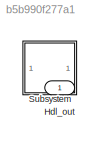
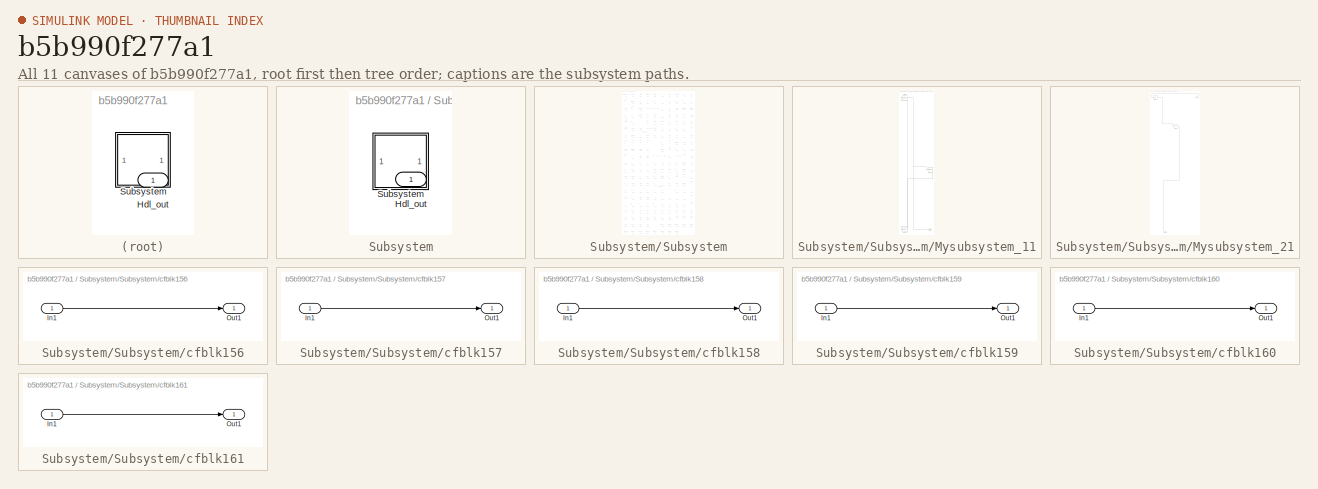
[diagram: thumbnail index - all 11 canvases of the model, root first then tree order]
MODEL slx_b5b990f277a1
KIND model
CONFIG AbsTol = auto
CONFIG EnableMultiTasking = off
CONFIG FixedStep = auto
CONFIG MaxStep = auto
CONFIG MinStep = auto
CONFIG RelTol = 1e-3
CONFIG SampleTimeConstraint = Unconstrained
CONFIG SolverName = VariableStepAuto
CONFIG StartTime = 0.0
CONFIG StopTime = 10.0
BLOCK [Outport] Hdl_out
  OutDataTypeStr = uint8
BLOCK [SubSystem] Subsystem
BLOCK [Outport] Subsystem/Hdl_out
  OutDataTypeStr = uint8
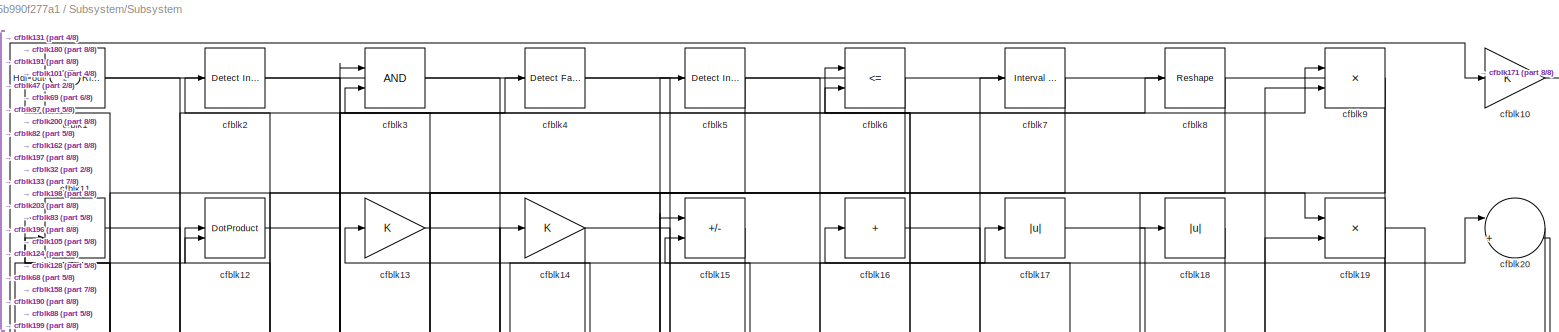
[diagram: Subsystem/Subsystem - part 1/8, full width, top band]
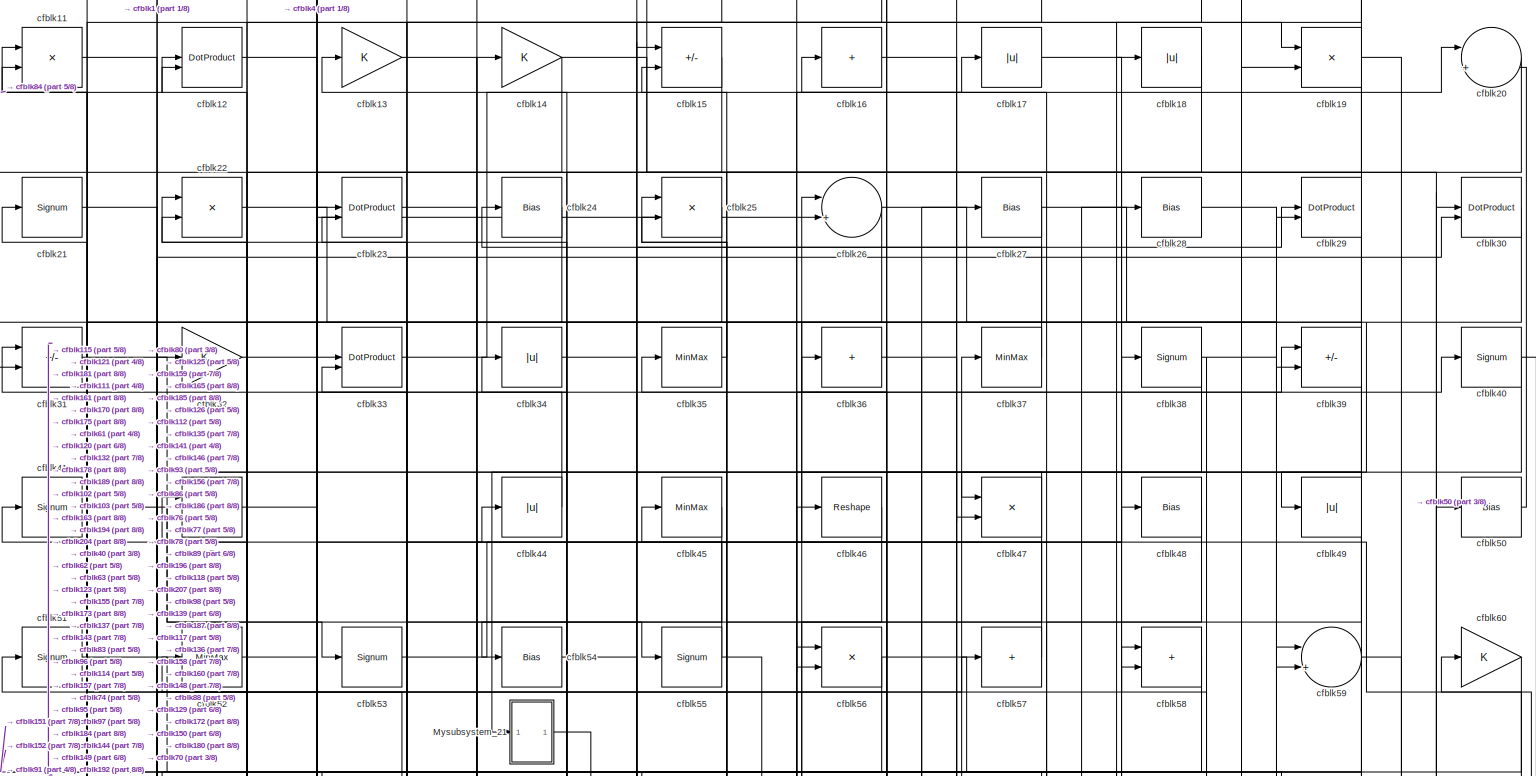
[diagram: Subsystem/Subsystem - part 2/8, full width, top band]
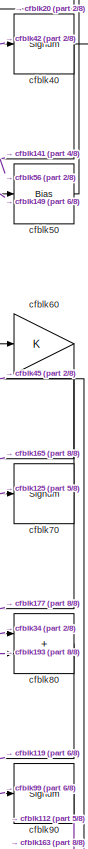
[diagram: Subsystem/Subsystem - part 3/8, top right region]
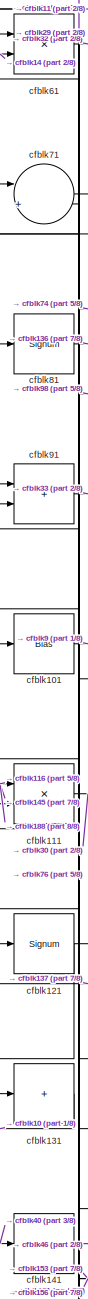
[diagram: Subsystem/Subsystem - part 4/8, middle left region]
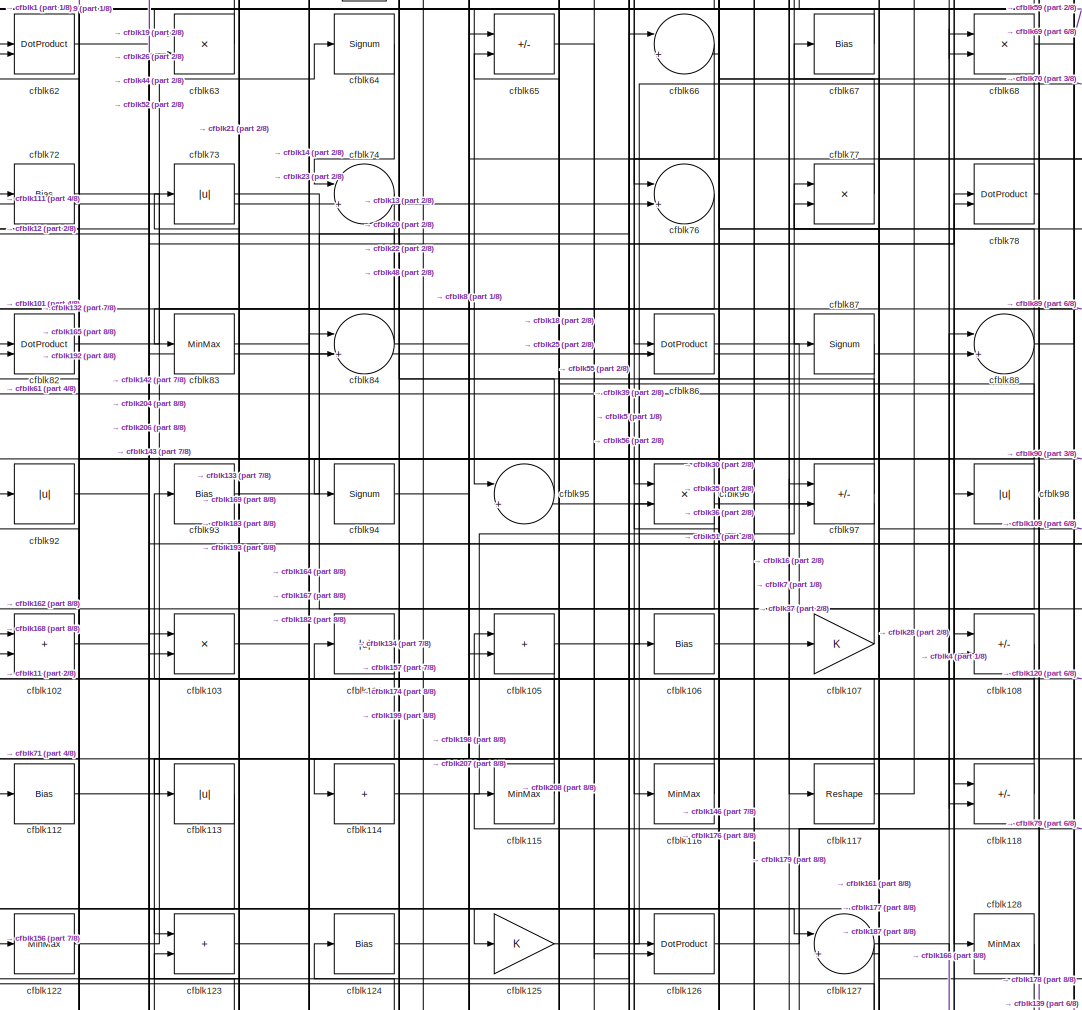
[diagram: Subsystem/Subsystem - part 5/8, central region]
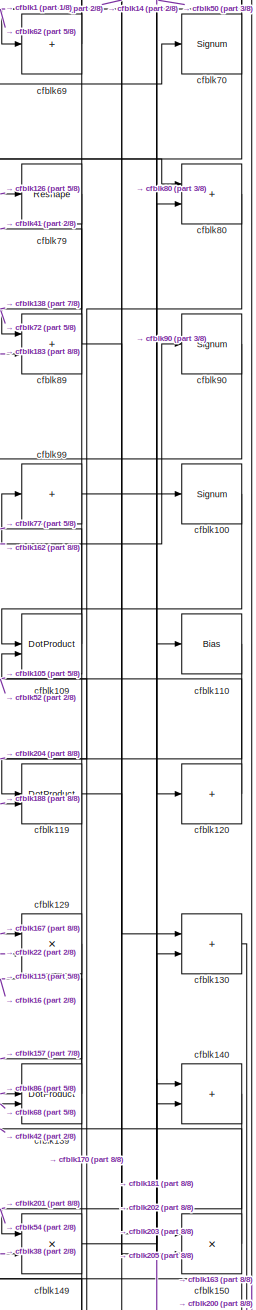
[diagram: Subsystem/Subsystem - part 6/8, middle right region]
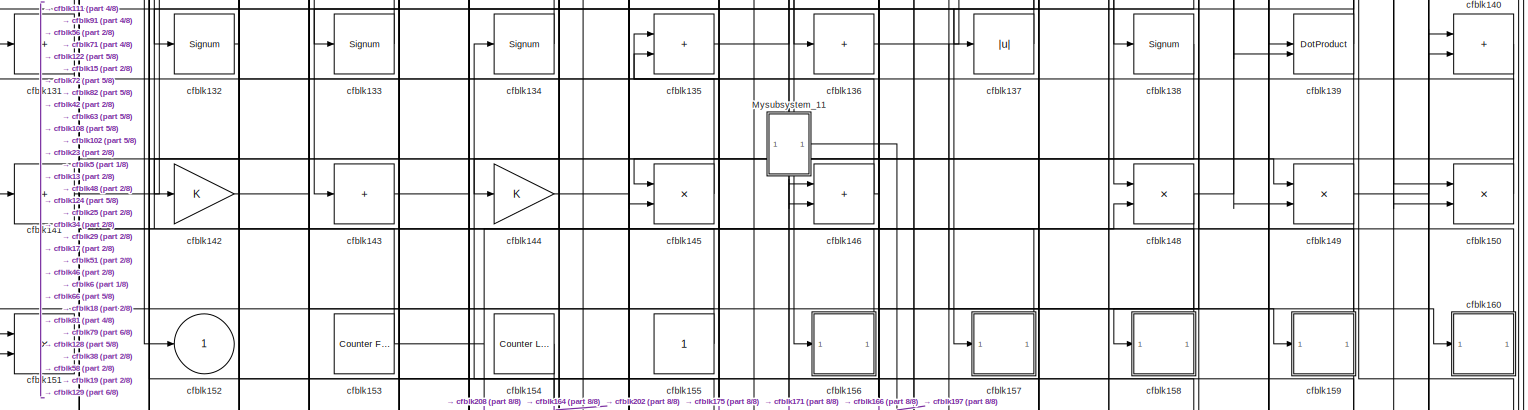
[diagram: Subsystem/Subsystem - part 7/8, full width, bottom band]
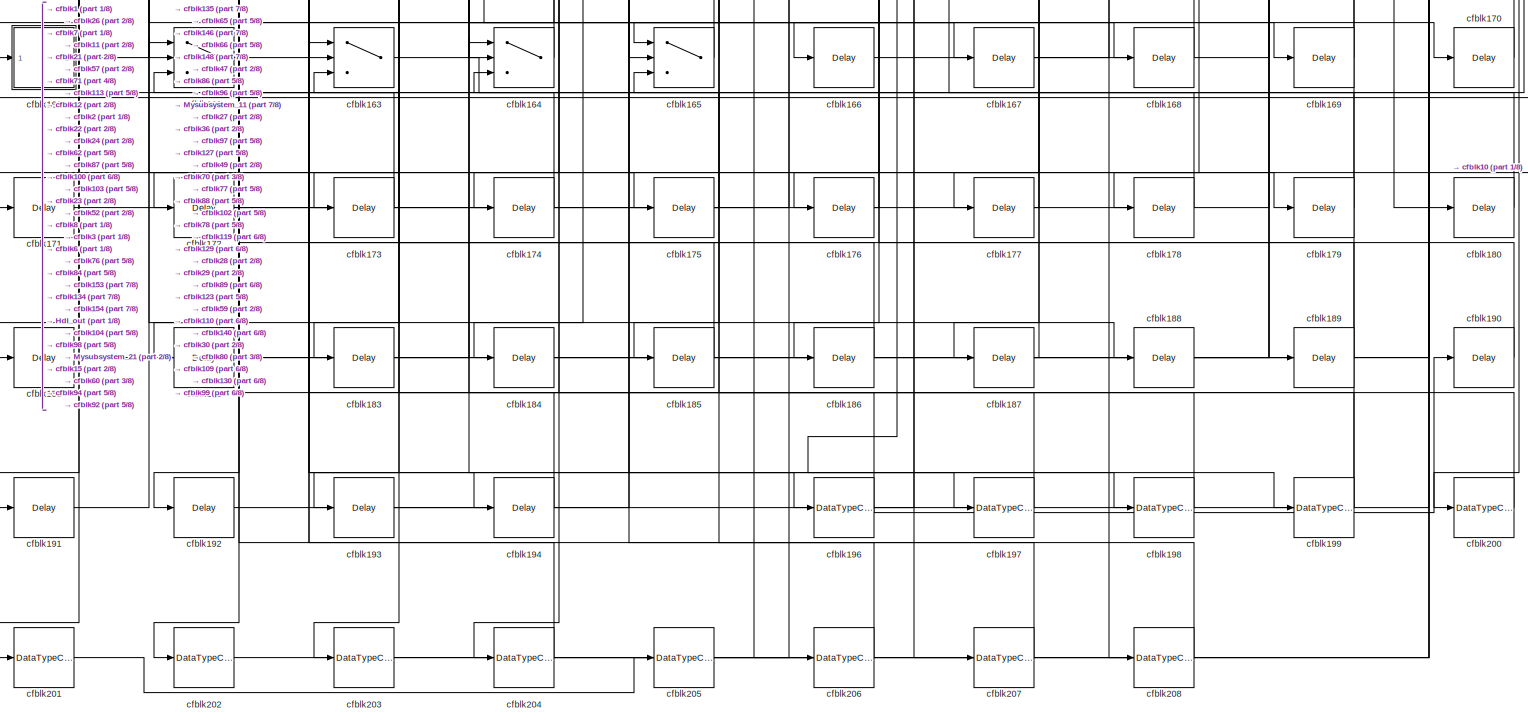
[diagram: Subsystem/Subsystem - part 8/8, full width, bottom band]
BLOCK [SubSystem] Subsystem/Subsystem
BLOCK [Outport] Subsystem/Subsystem/Hdl_out
  OutDataTypeStr = uint8
  Port = 2
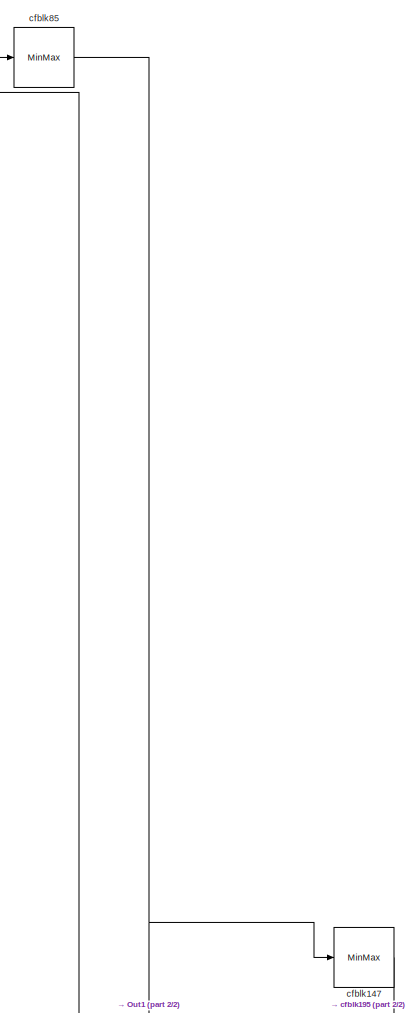
[diagram: Subsystem/Subsystem/Mysubsystem_11 - part 1/2, full width, top band]
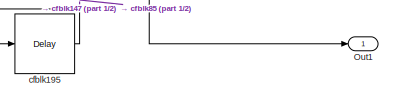
[diagram: Subsystem/Subsystem/Mysubsystem_11 - part 2/2, full width, bottom band]
BLOCK [SubSystem] Subsystem/Subsystem/Mysubsystem_11
  RTWFcnName = Mysubsystem_11
  RTWFcnNameOpts = User specified
  RTWFileNameOpts = Use function name
  RTWSystemCode = Reusable function
  TreatAsAtomicUnit = on
BLOCK [Outport] Subsystem/Subsystem/Mysubsystem_11/Out1
BLOCK [MinMax] Subsystem/Subsystem/Mysubsystem_11/cfblk147
BLOCK [Delay] Subsystem/Subsystem/Mysubsystem_11/cfblk195
  InputPortMap = u0
  SampleTime = 1
BLOCK [MinMax] Subsystem/Subsystem/Mysubsystem_11/cfblk85
BLOCK [SubSystem] Subsystem/Subsystem/Mysubsystem_21
  RTWFcnName = Mysubsystem_21
  RTWFcnNameOpts = User specified
  RTWFileNameOpts = Use function name
  RTWSystemCode = Reusable function
  TreatAsAtomicUnit = on
BLOCK [Inport] Subsystem/Subsystem/Mysubsystem_21/In1
BLOCK [Outport] Subsystem/Subsystem/Mysubsystem_21/Out1
BLOCK [Bias] Subsystem/Subsystem/Mysubsystem_21/cfblk43
  Bias = 0.0
  SaturateOnIntegerOverflow = off
BLOCK [Sum] Subsystem/Subsystem/Mysubsystem_21/cfblk75
  IconShape = rectangular
  Inputs = +
BLOCK [Reference] Subsystem/Subsystem/cfblk1  REF=hdlsllib/Logic and Bit
Operations/Detect Rise
Positive
  SourceBlock = hdlsllib/Logic and Bit\nOperations/Detect Rise\nPositive
  SourceType = Detect Rise Positive
BLOCK [Gain] Subsystem/Subsystem/cfblk10
  OutDataTypeStr = uint8
BLOCK [Signum] Subsystem/Subsystem/cfblk100
BLOCK [Bias] Subsystem/Subsystem/cfblk101
  Bias = 0.0
  SaturateOnIntegerOverflow = off
BLOCK [Sum] Subsystem/Subsystem/cfblk102
  IconShape = rectangular
  OutDataTypeStr = uint8
BLOCK [Product] Subsystem/Subsystem/cfblk103
  Inputs = */
  OutDataTypeStr = uint8
  RndMeth = Zero
  SaturateOnIntegerOverflow = on
BLOCK [Abs] Subsystem/Subsystem/cfblk104
  OutDataTypeStr = uint8
  SaturateOnIntegerOverflow = off
BLOCK [Sum] Subsystem/Subsystem/cfblk105
  IconShape = rectangular
  OutDataTypeStr = uint8
BLOCK [Bias] Subsystem/Subsystem/cfblk106
  Bias = 0.0
  SaturateOnIntegerOverflow = off
BLOCK [Gain] Subsystem/Subsystem/cfblk107
  OutDataTypeStr = uint8
BLOCK [Sum] Subsystem/Subsystem/cfblk108
  IconShape = rectangular
  Inputs = +-
  OutDataTypeStr = uint8
BLOCK [DotProduct] Subsystem/Subsystem/cfblk109
  OutDataTypeStr = uint8
BLOCK [Product] Subsystem/Subsystem/cfblk11
  Inputs = */
  OutDataTypeStr = uint8
  RndMeth = Zero
  SaturateOnIntegerOverflow = on
BLOCK [Bias] Subsystem/Subsystem/cfblk110
  Bias = 0.0
  SaturateOnIntegerOverflow = off
BLOCK [Product] Subsystem/Subsystem/cfblk111
  Inputs = */
  OutDataTypeStr = uint8
  RndMeth = Zero
  SaturateOnIntegerOverflow = on
BLOCK [Bias] Subsystem/Subsystem/cfblk112
  Bias = 0.0
  SaturateOnIntegerOverflow = off
BLOCK [Abs] Subsystem/Subsystem/cfblk113
  OutDataTypeStr = uint8
  SaturateOnIntegerOverflow = off
BLOCK [Sum] Subsystem/Subsystem/cfblk114
  IconShape = rectangular
  Inputs = +
  OutDataTypeStr = uint8
BLOCK [MinMax] Subsystem/Subsystem/cfblk115
  OutDataTypeStr = uint8
BLOCK [MinMax] Subsystem/Subsystem/cfblk116
  OutDataTypeStr = uint8
BLOCK [Reshape] Subsystem/Subsystem/cfblk117
BLOCK [Sum] Subsystem/Subsystem/cfblk118
  IconShape = rectangular
  Inputs = +-
  OutDataTypeStr = uint8
BLOCK [DotProduct] Subsystem/Subsystem/cfblk119
  OutDataTypeStr = uint8
BLOCK [DotProduct] Subsystem/Subsystem/cfblk12
  OutDataTypeStr = uint8
BLOCK [Sum] Subsystem/Subsystem/cfblk120
  IconShape = rectangular
  Inputs = +
  OutDataTypeStr = uint8
BLOCK [Signum] Subsystem/Subsystem/cfblk121
BLOCK [MinMax] Subsystem/Subsystem/cfblk122
  OutDataTypeStr = uint8
BLOCK [Sum] Subsystem/Subsystem/cfblk123
  IconShape = rectangular
  OutDataTypeStr = uint8
BLOCK [Bias] Subsystem/Subsystem/cfblk124
  Bias = 0.0
  SaturateOnIntegerOverflow = off
BLOCK [Gain] Subsystem/Subsystem/cfblk125
  OutDataTypeStr = uint8
BLOCK [DotProduct] Subsystem/Subsystem/cfblk126
  OutDataTypeStr = uint8
BLOCK [Sum] Subsystem/Subsystem/cfblk127
  Inputs = |++
  OutDataTypeStr = uint8
BLOCK [MinMax] Subsystem/Subsystem/cfblk128
  OutDataTypeStr = uint8
BLOCK [Product] Subsystem/Subsystem/cfblk129
  Inputs = */
  OutDataTypeStr = uint8
  RndMeth = Zero
  SaturateOnIntegerOverflow = on
BLOCK [Gain] Subsystem/Subsystem/cfblk13
  OutDataTypeStr = uint8
BLOCK [Sum] Subsystem/Subsystem/cfblk130
  IconShape = rectangular
  OutDataTypeStr = uint8
BLOCK [Sum] Subsystem/Subsystem/cfblk131
  IconShape = rectangular
  Inputs = +
  OutDataTypeStr = uint8
BLOCK [Signum] Subsystem/Subsystem/cfblk132
BLOCK [Signum] Subsystem/Subsystem/cfblk133
BLOCK [Signum] Subsystem/Subsystem/cfblk134
BLOCK [Sum] Subsystem/Subsystem/cfblk135
  IconShape = rectangular
  OutDataTypeStr = uint8
BLOCK [Sum] Subsystem/Subsystem/cfblk136
  IconShape = rectangular
  Inputs = +
  OutDataTypeStr = uint8
BLOCK [Abs] Subsystem/Subsystem/cfblk137
  OutDataTypeStr = uint8
  SaturateOnIntegerOverflow = off
BLOCK [Signum] Subsystem/Subsystem/cfblk138
BLOCK [DotProduct] Subsystem/Subsystem/cfblk139
  OutDataTypeStr = uint8
BLOCK [Gain] Subsystem/Subsystem/cfblk14
  OutDataTypeStr = uint8
BLOCK [Sum] Subsystem/Subsystem/cfblk140
  IconShape = rectangular
  OutDataTypeStr = uint8
BLOCK [Sum] Subsystem/Subsystem/cfblk141
  IconShape = rectangular
  Inputs = +
  OutDataTypeStr = uint8
BLOCK [Gain] Subsystem/Subsystem/cfblk142
  OutDataTypeStr = uint8
BLOCK [Sum] Subsystem/Subsystem/cfblk143
  IconShape = rectangular
  Inputs = +
  OutDataTypeStr = uint8
BLOCK [Gain] Subsystem/Subsystem/cfblk144
  OutDataTypeStr = uint8
BLOCK [Product] Subsystem/Subsystem/cfblk145
  Inputs = */
  OutDataTypeStr = uint8
  RndMeth = Zero
  SaturateOnIntegerOverflow = on
BLOCK [Sum] Subsystem/Subsystem/cfblk146
  IconShape = rectangular
  OutDataTypeStr = uint8
BLOCK [Product] Subsystem/Subsystem/cfblk148
  Inputs = */
  OutDataTypeStr = uint8
  RndMeth = Zero
  SaturateOnIntegerOverflow = on
BLOCK [Product] Subsystem/Subsystem/cfblk149
  Inputs = */
  OutDataTypeStr = uint8
  RndMeth = Zero
  SaturateOnIntegerOverflow = on
BLOCK [Sum] Subsystem/Subsystem/cfblk15
  IconShape = rectangular
  Inputs = +-
  OutDataTypeStr = uint8
BLOCK [Product] Subsystem/Subsystem/cfblk150
  Inputs = */
  OutDataTypeStr = uint8
  RndMeth = Zero
  SaturateOnIntegerOverflow = on
BLOCK [Product] Subsystem/Subsystem/cfblk151
  Inputs = */
  OutDataTypeStr = uint8
  RndMeth = Zero
  SaturateOnIntegerOverflow = on
BLOCK [Outport] Subsystem/Subsystem/cfblk152
  OutDataTypeStr = uint8
  VectorParamsAs1DForOutWhenUnconnected = off
BLOCK [Reference] Subsystem/Subsystem/cfblk153  REF=hdlsllib/Sources/Counter
Free-Running
  SourceBlock = hdlsllib/Sources/Counter\nFree-Running
  SourceType = Counter Free-Running
BLOCK [Reference] Subsystem/Subsystem/cfblk154  REF=hdlsllib/Sources/Counter
Limited
  SourceBlock = hdlsllib/Sources/Counter\nLimited
  SourceType = Counter Limited
BLOCK [Constant] Subsystem/Subsystem/cfblk155
  OutDataTypeStr = uint8
  SampleTime = -1
BLOCK [SubSystem] Subsystem/Subsystem/cfblk156
  LibrarySourceBlock = hdlsllib/Ports &\nSubsystems/Subsystem
BLOCK [Inport] Subsystem/Subsystem/cfblk156/In1
BLOCK [Outport] Subsystem/Subsystem/cfblk156/Out1
BLOCK [SubSystem] Subsystem/Subsystem/cfblk157
  LibrarySourceBlock = hdlsllib/Ports &\nSubsystems/Subsystem
BLOCK [Inport] Subsystem/Subsystem/cfblk157/In1
BLOCK [Outport] Subsystem/Subsystem/cfblk157/Out1
BLOCK [SubSystem] Subsystem/Subsystem/cfblk158
  LibrarySourceBlock = hdlsllib/Ports &\nSubsystems/Subsystem
BLOCK [Inport] Subsystem/Subsystem/cfblk158/In1
BLOCK [Outport] Subsystem/Subsystem/cfblk158/Out1
BLOCK [SubSystem] Subsystem/Subsystem/cfblk159
  LibrarySourceBlock = hdlsllib/Ports &\nSubsystems/Subsystem
BLOCK [Inport] Subsystem/Subsystem/cfblk159/In1
BLOCK [Outport] Subsystem/Subsystem/cfblk159/Out1
BLOCK [Sum] Subsystem/Subsystem/cfblk16
  IconShape = rectangular
  Inputs = +
  OutDataTypeStr = uint8
BLOCK [SubSystem] Subsystem/Subsystem/cfblk160
  LibrarySourceBlock = hdlsllib/Ports &\nSubsystems/Subsystem
BLOCK [Inport] Subsystem/Subsystem/cfblk160/In1
BLOCK [Outport] Subsystem/Subsystem/cfblk160/Out1
BLOCK [SubSystem] Subsystem/Subsystem/cfblk161
  LibrarySourceBlock = hdlsllib/Ports &\nSubsystems/Subsystem
BLOCK [Inport] Subsystem/Subsystem/cfblk161/In1
BLOCK [Outport] Subsystem/Subsystem/cfblk161/Out1
BLOCK [Switch] Subsystem/Subsystem/cfblk162
  InputSameDT = off
  OutDataTypeStr = uint8
  SaturateOnIntegerOverflow = off
BLOCK [Switch] Subsystem/Subsystem/cfblk163
  InputSameDT = off
  OutDataTypeStr = uint8
  SaturateOnIntegerOverflow = off
BLOCK [Switch] Subsystem/Subsystem/cfblk164
  InputSameDT = off
  OutDataTypeStr = uint8
  SaturateOnIntegerOverflow = off
BLOCK [Switch] Subsystem/Subsystem/cfblk165
  InputSameDT = off
  OutDataTypeStr = uint8
  SaturateOnIntegerOverflow = off
BLOCK [Delay] Subsystem/Subsystem/cfblk166
  InputPortMap = u0
  SampleTime = 1
BLOCK [Delay] Subsystem/Subsystem/cfblk167
  InputPortMap = u0
  SampleTime = 1
BLOCK [Delay] Subsystem/Subsystem/cfblk168
  InputPortMap = u0
  SampleTime = 1
BLOCK [Delay] Subsystem/Subsystem/cfblk169
  InputPortMap = u0
  SampleTime = 1
BLOCK [Abs] Subsystem/Subsystem/cfblk17
  OutDataTypeStr = uint8
  SaturateOnIntegerOverflow = off
BLOCK [Delay] Subsystem/Subsystem/cfblk170
  InputPortMap = u0
  SampleTime = 1
BLOCK [Delay] Subsystem/Subsystem/cfblk171
  InputPortMap = u0
  SampleTime = 1
BLOCK [Delay] Subsystem/Subsystem/cfblk172
  InputPortMap = u0
  SampleTime = 1
BLOCK [Delay] Subsystem/Subsystem/cfblk173
  InputPortMap = u0
  SampleTime = 1
BLOCK [Delay] Subsystem/Subsystem/cfblk174
  InputPortMap = u0
  SampleTime = 1
BLOCK [Delay] Subsystem/Subsystem/cfblk175
  InputPortMap = u0
  SampleTime = 1
BLOCK [Delay] Subsystem/Subsystem/cfblk176
  InputPortMap = u0
  SampleTime = 1
BLOCK [Delay] Subsystem/Subsystem/cfblk177
  InputPortMap = u0
  SampleTime = 1
BLOCK [Delay] Subsystem/Subsystem/cfblk178
  InputPortMap = u0
  SampleTime = 1
BLOCK [Delay] Subsystem/Subsystem/cfblk179
  InputPortMap = u0
  SampleTime = 1
BLOCK [Abs] Subsystem/Subsystem/cfblk18
  OutDataTypeStr = uint8
  SaturateOnIntegerOverflow = off
BLOCK [Delay] Subsystem/Subsystem/cfblk180
  InputPortMap = u0
  SampleTime = 1
BLOCK [Delay] Subsystem/Subsystem/cfblk181
  InputPortMap = u0
  SampleTime = 1
BLOCK [Delay] Subsystem/Subsystem/cfblk182
  InputPortMap = u0
  SampleTime = 1
BLOCK [Delay] Subsystem/Subsystem/cfblk183
  InputPortMap = u0
  SampleTime = 1
BLOCK [Delay] Subsystem/Subsystem/cfblk184
  InputPortMap = u0
  SampleTime = 1
BLOCK [Delay] Subsystem/Subsystem/cfblk185
  InputPortMap = u0
  SampleTime = 1
BLOCK [Delay] Subsystem/Subsystem/cfblk186
  InputPortMap = u0
  SampleTime = 1
BLOCK [Delay] Subsystem/Subsystem/cfblk187
  InputPortMap = u0
  SampleTime = 1
BLOCK [Delay] Subsystem/Subsystem/cfblk188
  InputPortMap = u0
  SampleTime = 1
BLOCK [Delay] Subsystem/Subsystem/cfblk189
  InputPortMap = u0
  SampleTime = 1
BLOCK [Product] Subsystem/Subsystem/cfblk19
  Inputs = */
  OutDataTypeStr = uint8
  RndMeth = Zero
  SaturateOnIntegerOverflow = on
BLOCK [Delay] Subsystem/Subsystem/cfblk190
  InputPortMap = u0
  SampleTime = 1
BLOCK [Delay] Subsystem/Subsystem/cfblk191
  InputPortMap = u0
  SampleTime = 1
BLOCK [Delay] Subsystem/Subsystem/cfblk192
  InputPortMap = u0
  SampleTime = 1
BLOCK [Delay] Subsystem/Subsystem/cfblk193
  InputPortMap = u0
  SampleTime = 1
BLOCK [Delay] Subsystem/Subsystem/cfblk194
  InputPortMap = u0
  SampleTime = 1
BLOCK [DataTypeConversion] Subsystem/Subsystem/cfblk196
  OutDataTypeStr = uint8
  RndMeth = Floor
  SaturateOnIntegerOverflow = off
BLOCK [DataTypeConversion] Subsystem/Subsystem/cfblk197
  OutDataTypeStr = uint8
  RndMeth = Floor
  SaturateOnIntegerOverflow = off
BLOCK [DataTypeConversion] Subsystem/Subsystem/cfblk198
  OutDataTypeStr = uint8
  RndMeth = Floor
  SaturateOnIntegerOverflow = off
BLOCK [DataTypeConversion] Subsystem/Subsystem/cfblk199
  OutDataTypeStr = uint8
  RndMeth = Floor
  SaturateOnIntegerOverflow = off
BLOCK [Reference] Subsystem/Subsystem/cfblk2  REF=simulink/Logic and Bit
Operations/Detect
Increase
  LibrarySourceBlock = hdlsllib/Logic and Bit\nOperations/Detect\nIncrease
  SourceBlock = simulink/Logic and Bit\nOperations/Detect\nIncrease
  SourceType = Detect Increase
BLOCK [Sum] Subsystem/Subsystem/cfblk20
  Inputs = |++
  OutDataTypeStr = uint8
BLOCK [DataTypeConversion] Subsystem/Subsystem/cfblk200
  OutDataTypeStr = uint8
  RndMeth = Floor
  SaturateOnIntegerOverflow = off
BLOCK [DataTypeConversion] Subsystem/Subsystem/cfblk201
  OutDataTypeStr = uint8
  RndMeth = Floor
  SaturateOnIntegerOverflow = off
BLOCK [DataTypeConversion] Subsystem/Subsystem/cfblk202
  OutDataTypeStr = uint8
  RndMeth = Floor
  SaturateOnIntegerOverflow = off
BLOCK [DataTypeConversion] Subsystem/Subsystem/cfblk203
  OutDataTypeStr = uint8
  RndMeth = Floor
  SaturateOnIntegerOverflow = off
BLOCK [DataTypeConversion] Subsystem/Subsystem/cfblk204
  OutDataTypeStr = uint8
  RndMeth = Floor
  SaturateOnIntegerOverflow = off
BLOCK [DataTypeConversion] Subsystem/Subsystem/cfblk205
  OutDataTypeStr = uint8
  RndMeth = Floor
  SaturateOnIntegerOverflow = off
BLOCK [DataTypeConversion] Subsystem/Subsystem/cfblk206
  OutDataTypeStr = uint8
  RndMeth = Floor
  SaturateOnIntegerOverflow = off
BLOCK [DataTypeConversion] Subsystem/Subsystem/cfblk207
  OutDataTypeStr = uint8
  RndMeth = Floor
  SaturateOnIntegerOverflow = off
BLOCK [DataTypeConversion] Subsystem/Subsystem/cfblk208
  OutDataTypeStr = uint8
  RndMeth = Floor
  SaturateOnIntegerOverflow = off
BLOCK [Signum] Subsystem/Subsystem/cfblk21
BLOCK [Product] Subsystem/Subsystem/cfblk22
  Inputs = */
  OutDataTypeStr = uint8
  RndMeth = Zero
  SaturateOnIntegerOverflow = on
BLOCK [DotProduct] Subsystem/Subsystem/cfblk23
  OutDataTypeStr = uint8
BLOCK [Bias] Subsystem/Subsystem/cfblk24
  Bias = 0.0
  SaturateOnIntegerOverflow = off
BLOCK [Product] Subsystem/Subsystem/cfblk25
  Inputs = */
  OutDataTypeStr = uint8
  RndMeth = Zero
  SaturateOnIntegerOverflow = on
BLOCK [Sum] Subsystem/Subsystem/cfblk26
  Inputs = |++
  OutDataTypeStr = uint8
BLOCK [Bias] Subsystem/Subsystem/cfblk27
  Bias = 0.0
  SaturateOnIntegerOverflow = off
BLOCK [Bias] Subsystem/Subsystem/cfblk28
  Bias = 0.0
  SaturateOnIntegerOverflow = off
BLOCK [DotProduct] Subsystem/Subsystem/cfblk29
  OutDataTypeStr = uint8
BLOCK [Logic] Subsystem/Subsystem/cfblk3
  AllPortsSameDT = off
  OutDataTypeStr = boolean
BLOCK [DotProduct] Subsystem/Subsystem/cfblk30
  OutDataTypeStr = uint8
BLOCK [Sum] Subsystem/Subsystem/cfblk31
  IconShape = rectangular
  Inputs = +-
  OutDataTypeStr = uint8
BLOCK [Gain] Subsystem/Subsystem/cfblk32
  OutDataTypeStr = uint8
BLOCK [DotProduct] Subsystem/Subsystem/cfblk33
  OutDataTypeStr = uint8
BLOCK [Abs] Subsystem/Subsystem/cfblk34
  OutDataTypeStr = uint8
  SaturateOnIntegerOverflow = off
BLOCK [MinMax] Subsystem/Subsystem/cfblk35
  OutDataTypeStr = uint8
BLOCK [Sum] Subsystem/Subsystem/cfblk36
  IconShape = rectangular
  Inputs = +
  OutDataTypeStr = uint8
BLOCK [MinMax] Subsystem/Subsystem/cfblk37
  OutDataTypeStr = uint8
BLOCK [Signum] Subsystem/Subsystem/cfblk38
BLOCK [Sum] Subsystem/Subsystem/cfblk39
  IconShape = rectangular
  Inputs = +-
  OutDataTypeStr = uint8
BLOCK [Reference] Subsystem/Subsystem/cfblk4  REF=hdlsllib/Logic and Bit
Operations/Detect Fall
Nonpositive
  SourceBlock = hdlsllib/Logic and Bit\nOperations/Detect Fall\nNonpositive
  SourceType = Detect Fall Nonpositive
BLOCK [Signum] Subsystem/Subsystem/cfblk40
BLOCK [Signum] Subsystem/Subsystem/cfblk41
BLOCK [Sum] Subsystem/Subsystem/cfblk42
  IconShape = rectangular
  OutDataTypeStr = uint8
BLOCK [Abs] Subsystem/Subsystem/cfblk44
  OutDataTypeStr = uint8
  SaturateOnIntegerOverflow = off
BLOCK [MinMax] Subsystem/Subsystem/cfblk45
  OutDataTypeStr = uint8
BLOCK [Reshape] Subsystem/Subsystem/cfblk46
BLOCK [Product] Subsystem/Subsystem/cfblk47
  Inputs = */
  OutDataTypeStr = uint8
  RndMeth = Zero
  SaturateOnIntegerOverflow = on
BLOCK [Bias] Subsystem/Subsystem/cfblk48
  Bias = 0.0
  SaturateOnIntegerOverflow = off
BLOCK [Abs] Subsystem/Subsystem/cfblk49
  OutDataTypeStr = uint8
  SaturateOnIntegerOverflow = off
BLOCK [Reference] Subsystem/Subsystem/cfblk5  REF=simulink/Logic and Bit
Operations/Detect
Increase
  LibrarySourceBlock = hdlsllib/Logic and Bit\nOperations/Detect\nIncrease
  SourceBlock = simulink/Logic and Bit\nOperations/Detect\nIncrease
  SourceType = Detect Increase
BLOCK [Bias] Subsystem/Subsystem/cfblk50
  Bias = 0.0
  SaturateOnIntegerOverflow = off
BLOCK [Signum] Subsystem/Subsystem/cfblk51
BLOCK [MinMax] Subsystem/Subsystem/cfblk52
  OutDataTypeStr = uint8
BLOCK [Signum] Subsystem/Subsystem/cfblk53
BLOCK [Bias] Subsystem/Subsystem/cfblk54
  Bias = 0.0
  SaturateOnIntegerOverflow = off
BLOCK [Signum] Subsystem/Subsystem/cfblk55
BLOCK [Product] Subsystem/Subsystem/cfblk56
  Inputs = */
  OutDataTypeStr = uint8
  RndMeth = Zero
  SaturateOnIntegerOverflow = on
BLOCK [Sum] Subsystem/Subsystem/cfblk57
  IconShape = rectangular
  Inputs = +
  OutDataTypeStr = uint8
BLOCK [Sum] Subsystem/Subsystem/cfblk58
  IconShape = rectangular
  OutDataTypeStr = uint8
BLOCK [Sum] Subsystem/Subsystem/cfblk59
  Inputs = |++
  OutDataTypeStr = uint8
BLOCK [RelationalOperator] Subsystem/Subsystem/cfblk6
  InputSameDT = off
  Operator = <=
  OutDataTypeStr = boolean
BLOCK [Gain] Subsystem/Subsystem/cfblk60
  OutDataTypeStr = uint8
BLOCK [Product] Subsystem/Subsystem/cfblk61
  Inputs = */
  OutDataTypeStr = uint8
  RndMeth = Zero
  SaturateOnIntegerOverflow = on
BLOCK [DotProduct] Subsystem/Subsystem/cfblk62
  OutDataTypeStr = uint8
BLOCK [Product] Subsystem/Subsystem/cfblk63
  Inputs = */
  OutDataTypeStr = uint8
  RndMeth = Zero
  SaturateOnIntegerOverflow = on
BLOCK [Signum] Subsystem/Subsystem/cfblk64
BLOCK [Sum] Subsystem/Subsystem/cfblk65
  IconShape = rectangular
  Inputs = +-
  OutDataTypeStr = uint8
BLOCK [Sum] Subsystem/Subsystem/cfblk66
  Inputs = |++
  OutDataTypeStr = uint8
BLOCK [Bias] Subsystem/Subsystem/cfblk67
  Bias = 0.0
  SaturateOnIntegerOverflow = off
BLOCK [Product] Subsystem/Subsystem/cfblk68
  Inputs = */
  OutDataTypeStr = uint8
  RndMeth = Zero
  SaturateOnIntegerOverflow = on
BLOCK [Sum] Subsystem/Subsystem/cfblk69
  IconShape = rectangular
  Inputs = +
  OutDataTypeStr = uint8
BLOCK [Reference] Subsystem/Subsystem/cfblk7  REF=hdlsllib/Logic and Bit
Operations/Interval Test
  SourceBlock = hdlsllib/Logic and Bit\nOperations/Interval Test
  SourceType = Interval Test
BLOCK [Signum] Subsystem/Subsystem/cfblk70
BLOCK [Sum] Subsystem/Subsystem/cfblk71
  Inputs = |++
  OutDataTypeStr = uint8
BLOCK [Bias] Subsystem/Subsystem/cfblk72
  Bias = 0.0
  SaturateOnIntegerOverflow = off
BLOCK [Abs] Subsystem/Subsystem/cfblk73
  OutDataTypeStr = uint8
  SaturateOnIntegerOverflow = off
BLOCK [Sum] Subsystem/Subsystem/cfblk74
  Inputs = |++
  OutDataTypeStr = uint8
BLOCK [Sum] Subsystem/Subsystem/cfblk76
  Inputs = |++
  OutDataTypeStr = uint8
BLOCK [Product] Subsystem/Subsystem/cfblk77
  Inputs = */
  OutDataTypeStr = uint8
  RndMeth = Zero
  SaturateOnIntegerOverflow = on
BLOCK [DotProduct] Subsystem/Subsystem/cfblk78
  OutDataTypeStr = uint8
BLOCK [Reshape] Subsystem/Subsystem/cfblk79
BLOCK [Reshape] Subsystem/Subsystem/cfblk8
BLOCK [Sum] Subsystem/Subsystem/cfblk80
  IconShape = rectangular
  OutDataTypeStr = uint8
BLOCK [Signum] Subsystem/Subsystem/cfblk81
BLOCK [DotProduct] Subsystem/Subsystem/cfblk82
  OutDataTypeStr = uint8
BLOCK [MinMax] Subsystem/Subsystem/cfblk83
  OutDataTypeStr = uint8
BLOCK [Sum] Subsystem/Subsystem/cfblk84
  Inputs = |++
  OutDataTypeStr = uint8
BLOCK [DotProduct] Subsystem/Subsystem/cfblk86
  OutDataTypeStr = uint8
BLOCK [Signum] Subsystem/Subsystem/cfblk87
BLOCK [Sum] Subsystem/Subsystem/cfblk88
  Inputs = |++
  OutDataTypeStr = uint8
BLOCK [Sum] Subsystem/Subsystem/cfblk89
  IconShape = rectangular
  OutDataTypeStr = uint8
BLOCK [Product] Subsystem/Subsystem/cfblk9
  Inputs = */
  OutDataTypeStr = uint8
  RndMeth = Zero
  SaturateOnIntegerOverflow = on
BLOCK [Signum] Subsystem/Subsystem/cfblk90
BLOCK [Sum] Subsystem/Subsystem/cfblk91
  IconShape = rectangular
  OutDataTypeStr = uint8
BLOCK [Abs] Subsystem/Subsystem/cfblk92
  OutDataTypeStr = uint8
  SaturateOnIntegerOverflow = off
BLOCK [Bias] Subsystem/Subsystem/cfblk93
  Bias = 0.0
  SaturateOnIntegerOverflow = off
BLOCK [Signum] Subsystem/Subsystem/cfblk94
BLOCK [Sum] Subsystem/Subsystem/cfblk95
  Inputs = |++
  OutDataTypeStr = uint8
BLOCK [Product] Subsystem/Subsystem/cfblk96
  Inputs = */
  OutDataTypeStr = uint8
  RndMeth = Zero
  SaturateOnIntegerOverflow = on
BLOCK [Sum] Subsystem/Subsystem/cfblk97
  IconShape = rectangular
  Inputs = +-
  OutDataTypeStr = uint8
BLOCK [Abs] Subsystem/Subsystem/cfblk98
  OutDataTypeStr = uint8
  SaturateOnIntegerOverflow = off
BLOCK [Sum] Subsystem/Subsystem/cfblk99
  IconShape = rectangular
  Inputs = +
  OutDataTypeStr = uint8
LINE Subsystem/Subsystem/Mysubsystem_11/cfblk147:1 -> Subsystem/Subsystem/Mysubsystem_11/cfblk195:1
LINE Subsystem/Subsystem/Mysubsystem_11/cfblk195:1 -> Subsystem/Subsystem/Mysubsystem_11/cfblk85:1
NET Subsystem/Subsystem/Mysubsystem_11/cfblk85:1 -> Subsystem/Subsystem/Mysubsystem_11/Out1:1, Subsystem/Subsystem/Mysubsystem_11/cfblk147:1
LINE Subsystem/Subsystem/Mysubsystem_11:1 -> Subsystem/Subsystem/cfblk197:1
LINE Subsystem/Subsystem/Mysubsystem_21/In1:1 -> Subsystem/Subsystem/Mysubsystem_21/cfblk43:1
LINE Subsystem/Subsystem/Mysubsystem_21/cfblk43:1 -> Subsystem/Subsystem/Mysubsystem_21/cfblk75:1
LINE Subsystem/Subsystem/Mysubsystem_21/cfblk75:1 -> Subsystem/Subsystem/Mysubsystem_21/Out1:1
LINE Subsystem/Subsystem/Mysubsystem_21:1 -> Subsystem/Subsystem/cfblk184:1
LINE Subsystem/Subsystem/cfblk100:1 -> Subsystem/Subsystem/cfblk109:1
LINE Subsystem/Subsystem/cfblk101:1 -> Subsystem/Subsystem/cfblk9:1
NET Subsystem/Subsystem/cfblk102:1 -> Subsystem/Subsystem/cfblk26:2, Subsystem/Subsystem/cfblk88:2
LINE Subsystem/Subsystem/cfblk103:1 -> Subsystem/Subsystem/cfblk167:1
LINE Subsystem/Subsystem/cfblk104:1 -> Subsystem/Subsystem/cfblk164:2
NET Subsystem/Subsystem/cfblk105:1 -> Subsystem/Subsystem/cfblk113:1, Subsystem/Subsystem/cfblk7:1
LINE Subsystem/Subsystem/cfblk106:1 -> Subsystem/Subsystem/cfblk107:1
LINE Subsystem/Subsystem/cfblk107:1 -> Subsystem/Subsystem/cfblk95:2
LINE Subsystem/Subsystem/cfblk108:1 -> Subsystem/Subsystem/cfblk143:1
LINE Subsystem/Subsystem/cfblk109:1 -> Subsystem/Subsystem/cfblk77:1
LINE Subsystem/Subsystem/cfblk10:1 -> Subsystem/Subsystem/cfblk171:1
LINE Subsystem/Subsystem/cfblk110:1 -> Subsystem/Subsystem/cfblk204:1
NET Subsystem/Subsystem/cfblk111:1 -> Subsystem/Subsystem/cfblk30:2, Subsystem/Subsystem/cfblk76:2
NET Subsystem/Subsystem/cfblk112:1 -> Subsystem/Subsystem/cfblk56:1, Subsystem/Subsystem/cfblk64:1
LINE Subsystem/Subsystem/cfblk113:1 -> Subsystem/Subsystem/cfblk192:1
LINE Subsystem/Subsystem/cfblk114:1 -> Subsystem/Subsystem/cfblk37:1
LINE Subsystem/Subsystem/cfblk115:1 -> Subsystem/Subsystem/cfblk11:1
LINE Subsystem/Subsystem/cfblk116:1 -> Subsystem/Subsystem/cfblk73:1
NET Subsystem/Subsystem/cfblk117:1 -> Subsystem/Subsystem/cfblk28:1, Subsystem/Subsystem/cfblk93:1
LINE Subsystem/Subsystem/cfblk118:1 -> Subsystem/Subsystem/cfblk67:1
LINE Subsystem/Subsystem/cfblk119:1 -> Subsystem/Subsystem/cfblk130:1
LINE Subsystem/Subsystem/cfblk11:1 -> Subsystem/Subsystem/cfblk170:1
NET Subsystem/Subsystem/cfblk120:1 -> Subsystem/Subsystem/cfblk105:1, Subsystem/Subsystem/cfblk52:1
NET Subsystem/Subsystem/cfblk121:1 -> Subsystem/Subsystem/cfblk11:2, Subsystem/Subsystem/cfblk131:1, Subsystem/Subsystem/cfblk58:2
NET Subsystem/Subsystem/cfblk122:1 -> Subsystem/Subsystem/cfblk108:2, Subsystem/Subsystem/cfblk68:1
NET Subsystem/Subsystem/cfblk123:1 -> Subsystem/Subsystem/cfblk168:1, Subsystem/Subsystem/cfblk84:2
NET Subsystem/Subsystem/cfblk124:1 -> Subsystem/Subsystem/cfblk106:1, Subsystem/Subsystem/cfblk5:1
NET Subsystem/Subsystem/cfblk125:1 -> Subsystem/Subsystem/cfblk70:1, Subsystem/Subsystem/cfblk78:1
LINE Subsystem/Subsystem/cfblk126:1 -> Subsystem/Subsystem/cfblk79:1
NET Subsystem/Subsystem/cfblk127:1 -> Subsystem/Subsystem/cfblk161:1, Subsystem/Subsystem/cfblk169:1
LINE Subsystem/Subsystem/cfblk128:1 -> Subsystem/Subsystem/cfblk142:1
LINE Subsystem/Subsystem/cfblk129:1 -> Subsystem/Subsystem/cfblk157:1
LINE Subsystem/Subsystem/cfblk12:1 -> Subsystem/Subsystem/cfblk163:1
LINE Subsystem/Subsystem/cfblk130:1 -> Subsystem/Subsystem/cfblk200:1
LINE Subsystem/Subsystem/cfblk131:1 -> Subsystem/Subsystem/cfblk10:1
LINE Subsystem/Subsystem/cfblk132:1 -> Subsystem/Subsystem/cfblk72:1
LINE Subsystem/Subsystem/cfblk133:1 -> Subsystem/Subsystem/cfblk102:2
LINE Subsystem/Subsystem/cfblk134:1 -> Subsystem/Subsystem/cfblk124:1
LINE Subsystem/Subsystem/cfblk135:1 -> Subsystem/Subsystem/cfblk17:1
NET Subsystem/Subsystem/cfblk136:1 -> Subsystem/Subsystem/cfblk159:1, Subsystem/Subsystem/cfblk18:1
LINE Subsystem/Subsystem/cfblk137:1 -> Subsystem/Subsystem/cfblk81:1
LINE Subsystem/Subsystem/cfblk138:1 -> Subsystem/Subsystem/cfblk145:1
NET Subsystem/Subsystem/cfblk139:1 -> Subsystem/Subsystem/cfblk115:1, Subsystem/Subsystem/cfblk16:1
LINE Subsystem/Subsystem/cfblk13:1 -> Subsystem/Subsystem/cfblk137:1
LINE Subsystem/Subsystem/cfblk140:1 -> Subsystem/Subsystem/cfblk201:1
LINE Subsystem/Subsystem/cfblk141:1 -> Subsystem/Subsystem/cfblk46:1
LINE Subsystem/Subsystem/cfblk142:1 -> Subsystem/Subsystem/cfblk63:2
LINE Subsystem/Subsystem/cfblk143:1 -> Subsystem/Subsystem/cfblk48:1
LINE Subsystem/Subsystem/cfblk144:1 -> Subsystem/Subsystem/cfblk29:1
LINE Subsystem/Subsystem/cfblk145:1 -> Subsystem/Subsystem/cfblk91:1
NET Subsystem/Subsystem/cfblk146:1 -> Subsystem/Subsystem/cfblk135:1, Subsystem/Subsystem/cfblk66:2
NET Subsystem/Subsystem/cfblk148:1 -> Subsystem/Subsystem/cfblk166:1, Subsystem/Subsystem/cfblk19:2
LINE Subsystem/Subsystem/cfblk149:1 -> Subsystem/Subsystem/cfblk50:1
NET Subsystem/Subsystem/cfblk14:1 -> Subsystem/Subsystem/cfblk120:1, Subsystem/Subsystem/cfblk61:2
LINE Subsystem/Subsystem/cfblk150:1 -> Subsystem/Subsystem/cfblk42:1
LINE Subsystem/Subsystem/cfblk151:1 -> Subsystem/Subsystem/cfblk71:1
NET Subsystem/Subsystem/cfblk153:1 -> Subsystem/Subsystem/cfblk111:2, Subsystem/Subsystem/cfblk148:2, Subsystem/Subsystem/cfblk208:1
LINE Subsystem/Subsystem/cfblk154:1 -> Subsystem/Subsystem/cfblk202:1
NET Subsystem/Subsystem/cfblk155:1 -> Subsystem/Subsystem/cfblk151:1, Subsystem/Subsystem/cfblk23:2
LINE Subsystem/Subsystem/cfblk156/In1:1 -> Subsystem/Subsystem/cfblk156/Out1:1
NET Subsystem/Subsystem/cfblk156:1 -> Subsystem/Subsystem/cfblk122:1, Subsystem/Subsystem/cfblk71:2
LINE Subsystem/Subsystem/cfblk157/In1:1 -> Subsystem/Subsystem/cfblk157/Out1:1
NET Subsystem/Subsystem/cfblk157:1 -> Subsystem/Subsystem/cfblk34:1, Subsystem/Subsystem/cfblk82:2
LINE Subsystem/Subsystem/cfblk158/In1:1 -> Subsystem/Subsystem/cfblk158/Out1:1
LINE Subsystem/Subsystem/cfblk158:1 -> Subsystem/Subsystem/cfblk6:1
LINE Subsystem/Subsystem/cfblk159/In1:1 -> Subsystem/Subsystem/cfblk159/Out1:1
LINE Subsystem/Subsystem/cfblk159:1 -> Subsystem/Subsystem/cfblk25:1
LINE Subsystem/Subsystem/cfblk15:1 -> Subsystem/Subsystem/cfblk132:1
LINE Subsystem/Subsystem/cfblk160/In1:1 -> Subsystem/Subsystem/cfblk160/Out1:1
LINE Subsystem/Subsystem/cfblk160:1 -> Subsystem/Subsystem/cfblk58:1
LINE Subsystem/Subsystem/cfblk161/In1:1 -> Subsystem/Subsystem/cfblk161/Out1:1
LINE Subsystem/Subsystem/cfblk161:1 -> Subsystem/Subsystem/cfblk57:1
NET Subsystem/Subsystem/cfblk162:1 -> Subsystem/Subsystem/cfblk100:1, Subsystem/Subsystem/cfblk8:1
NET Subsystem/Subsystem/cfblk163:1 -> Subsystem/Subsystem/cfblk60:1, Subsystem/Subsystem/cfblk99:1
LINE Subsystem/Subsystem/cfblk164:1 -> Subsystem/Subsystem/cfblk134:1
LINE Subsystem/Subsystem/cfblk165:1 -> Subsystem/Subsystem/cfblk92:1
LINE Subsystem/Subsystem/cfblk166:1 -> Subsystem/Subsystem/cfblk88:1
LINE Subsystem/Subsystem/cfblk167:1 -> Subsystem/Subsystem/cfblk129:1
LINE Subsystem/Subsystem/cfblk168:1 -> Subsystem/Subsystem/cfblk102:1
LINE Subsystem/Subsystem/cfblk169:1 -> Subsystem/Subsystem/cfblk123:2
LINE Subsystem/Subsystem/cfblk16:1 -> Subsystem/Subsystem/cfblk98:1
LINE Subsystem/Subsystem/cfblk170:1 -> Subsystem/Subsystem/cfblk109:2
LINE Subsystem/Subsystem/cfblk171:1 -> Subsystem/Subsystem/cfblk146:1
LINE Subsystem/Subsystem/cfblk172:1 -> Subsystem/Subsystem/cfblk29:2
LINE Subsystem/Subsystem/cfblk173:1 -> Subsystem/Subsystem/cfblk162:3
LINE Subsystem/Subsystem/cfblk174:1 -> Subsystem/Subsystem/cfblk164:3
LINE Subsystem/Subsystem/cfblk175:1 -> Subsystem/Subsystem/cfblk135:2
LINE Subsystem/Subsystem/cfblk176:1 -> Subsystem/Subsystem/cfblk96:2
LINE Subsystem/Subsystem/cfblk177:1 -> Subsystem/Subsystem/cfblk127:2
LINE Subsystem/Subsystem/cfblk178:1 -> Subsystem/Subsystem/cfblk12:2
LINE Subsystem/Subsystem/cfblk179:1 -> Subsystem/Subsystem/cfblk97:1
NET Subsystem/Subsystem/cfblk17:1 -> Subsystem/Subsystem/cfblk148:1, Subsystem/Subsystem/cfblk19:1
LINE Subsystem/Subsystem/cfblk180:1 -> Subsystem/Subsystem/cfblk1:1
LINE Subsystem/Subsystem/cfblk181:1 -> Subsystem/Subsystem/cfblk130:2
LINE Subsystem/Subsystem/cfblk182:1 -> Subsystem/Subsystem/cfblk84:1
LINE Subsystem/Subsystem/cfblk183:1 -> Subsystem/Subsystem/cfblk89:2
LINE Subsystem/Subsystem/cfblk184:1 -> Subsystem/Subsystem/cfblk30:1
LINE Subsystem/Subsystem/cfblk185:1 -> Subsystem/Subsystem/cfblk163:2
LINE Subsystem/Subsystem/cfblk186:1 -> Subsystem/Subsystem/cfblk163:3
LINE Subsystem/Subsystem/cfblk187:1 -> Subsystem/Subsystem/cfblk77:2
LINE Subsystem/Subsystem/cfblk188:1 -> Subsystem/Subsystem/cfblk119:2
LINE Subsystem/Subsystem/cfblk189:1 -> Subsystem/Subsystem/cfblk22:2
LINE Subsystem/Subsystem/cfblk18:1 -> Subsystem/Subsystem/cfblk125:1
LINE Subsystem/Subsystem/cfblk190:1 -> Subsystem/Subsystem/cfblk6:2
LINE Subsystem/Subsystem/cfblk191:1 -> Subsystem/Subsystem/cfblk162:1
LINE Subsystem/Subsystem/cfblk192:1 -> Subsystem/Subsystem/cfblk15:1
LINE Subsystem/Subsystem/cfblk193:1 -> Subsystem/Subsystem/cfblk80:2
LINE Subsystem/Subsystem/cfblk194:1 -> Subsystem/Subsystem/cfblk164:1
NET Subsystem/Subsystem/cfblk196:1 -> Subsystem/Subsystem/cfblk165:3, Subsystem/Subsystem/cfblk190:1, Subsystem/Subsystem/cfblk27:1
LINE Subsystem/Subsystem/cfblk197:1 -> Subsystem/Subsystem/cfblk3:1
LINE Subsystem/Subsystem/cfblk198:1 -> Subsystem/Subsystem/cfblk3:2
NET Subsystem/Subsystem/cfblk199:1 -> Subsystem/Subsystem/Hdl_out:1, Subsystem/Subsystem/cfblk104:1
NET Subsystem/Subsystem/cfblk19:1 -> Subsystem/Subsystem/cfblk103:2, Subsystem/Subsystem/cfblk150:1
NET Subsystem/Subsystem/cfblk1:1 -> Subsystem/Subsystem/cfblk47:2, Subsystem/Subsystem/cfblk69:1, Subsystem/Subsystem/cfblk97:2
LINE Subsystem/Subsystem/cfblk200:1 -> Subsystem/Subsystem/cfblk2:1
LINE Subsystem/Subsystem/cfblk201:1 -> Subsystem/Subsystem/cfblk205:1
LINE Subsystem/Subsystem/cfblk202:1 -> Subsystem/Subsystem/cfblk140:1
LINE Subsystem/Subsystem/cfblk203:1 -> Subsystem/Subsystem/cfblk140:2
NET Subsystem/Subsystem/cfblk204:1 -> Subsystem/Subsystem/cfblk23:1, Subsystem/Subsystem/cfblk66:1
LINE Subsystem/Subsystem/cfblk205:1 -> Subsystem/Subsystem/cfblk110:1
NET Subsystem/Subsystem/cfblk206:1 -> Subsystem/Subsystem/cfblk103:1, Subsystem/Subsystem/cfblk62:2
LINE Subsystem/Subsystem/cfblk207:1 -> Subsystem/Subsystem/cfblk65:1
LINE Subsystem/Subsystem/cfblk208:1 -> Subsystem/Subsystem/cfblk65:2
LINE Subsystem/Subsystem/cfblk20:1 -> Subsystem/Subsystem/cfblk114:1
LINE Subsystem/Subsystem/cfblk21:1 -> Subsystem/Subsystem/cfblk175:1
LINE Subsystem/Subsystem/cfblk22:1 -> Subsystem/Subsystem/cfblk129:2
LINE Subsystem/Subsystem/cfblk23:1 -> Subsystem/Subsystem/cfblk96:1
LINE Subsystem/Subsystem/cfblk24:1 -> Subsystem/Subsystem/cfblk172:1
LINE Subsystem/Subsystem/cfblk25:1 -> Subsystem/Subsystem/cfblk144:1
NET Subsystem/Subsystem/cfblk26:1 -> Subsystem/Subsystem/cfblk181:1, Subsystem/Subsystem/cfblk59:1, Subsystem/Subsystem/cfblk86:1
NET Subsystem/Subsystem/cfblk27:1 -> Subsystem/Subsystem/cfblk165:1, Subsystem/Subsystem/cfblk39:2
LINE Subsystem/Subsystem/cfblk28:1 -> Subsystem/Subsystem/cfblk189:1
NET Subsystem/Subsystem/cfblk29:1 -> Subsystem/Subsystem/cfblk121:1, Subsystem/Subsystem/cfblk173:1
LINE Subsystem/Subsystem/cfblk2:1 -> Subsystem/Subsystem/cfblk199:1
NET Subsystem/Subsystem/cfblk30:1 -> Subsystem/Subsystem/cfblk126:1, Subsystem/Subsystem/cfblk31:2, Subsystem/Subsystem/cfblk49:1
LINE Subsystem/Subsystem/cfblk31:1 -> Subsystem/Subsystem/cfblk55:1
LINE Subsystem/Subsystem/cfblk32:1 -> Subsystem/Subsystem/cfblk4:1
LINE Subsystem/Subsystem/cfblk33:1 -> Subsystem/Subsystem/cfblk20:1
LINE Subsystem/Subsystem/cfblk34:1 -> Subsystem/Subsystem/cfblk80:1
LINE Subsystem/Subsystem/cfblk35:1 -> Subsystem/Subsystem/cfblk15:2
NET Subsystem/Subsystem/cfblk36:1 -> Subsystem/Subsystem/cfblk118:1, Subsystem/Subsystem/cfblk207:1
LINE Subsystem/Subsystem/cfblk37:1 -> Subsystem/Subsystem/cfblk24:1
NET Subsystem/Subsystem/cfblk38:1 -> Subsystem/Subsystem/cfblk149:2, Subsystem/Subsystem/cfblk158:1, Subsystem/Subsystem/cfblk42:2, Subsystem/Subsystem/cfblk59:2
LINE Subsystem/Subsystem/cfblk39:1 -> Subsystem/Subsystem/cfblk76:1
LINE Subsystem/Subsystem/cfblk3:1 -> Subsystem/Subsystem/cfblk196:1
NET Subsystem/Subsystem/cfblk40:1 -> Subsystem/Subsystem/cfblk141:1, Subsystem/Subsystem/cfblk56:2
LINE Subsystem/Subsystem/cfblk41:1 -> Subsystem/Subsystem/cfblk53:1
NET Subsystem/Subsystem/cfblk42:1 -> Subsystem/Subsystem/cfblk160:1, Subsystem/Subsystem/cfblk40:1
LINE Subsystem/Subsystem/cfblk44:1 -> Subsystem/Subsystem/cfblk31:1
LINE Subsystem/Subsystem/cfblk45:1 -> Subsystem/Subsystem/cfblk54:1
LINE Subsystem/Subsystem/cfblk46:1 -> Subsystem/Subsystem/cfblk156:1
NET Subsystem/Subsystem/cfblk47:1 -> Subsystem/Subsystem/Mysubsystem_21:1, Subsystem/Subsystem/cfblk185:1, Subsystem/Subsystem/cfblk186:1
NET Subsystem/Subsystem/cfblk48:1 -> Subsystem/Subsystem/cfblk123:1, Subsystem/Subsystem/cfblk74:2
NET Subsystem/Subsystem/cfblk49:1 -> Subsystem/Subsystem/cfblk187:1, Subsystem/Subsystem/cfblk47:1
LINE Subsystem/Subsystem/cfblk4:1 -> Subsystem/Subsystem/cfblk128:1
LINE Subsystem/Subsystem/cfblk50:1 -> Subsystem/Subsystem/cfblk20:2
LINE Subsystem/Subsystem/cfblk51:1 -> Subsystem/Subsystem/cfblk146:2
NET Subsystem/Subsystem/cfblk52:1 -> Subsystem/Subsystem/cfblk118:2, Subsystem/Subsystem/cfblk194:1
LINE Subsystem/Subsystem/cfblk53:1 -> Subsystem/Subsystem/cfblk38:1
LINE Subsystem/Subsystem/cfblk54:1 -> Subsystem/Subsystem/cfblk149:1
NET Subsystem/Subsystem/cfblk55:1 -> Subsystem/Subsystem/cfblk126:2, Subsystem/Subsystem/cfblk33:2
NET Subsystem/Subsystem/cfblk56:1 -> Subsystem/Subsystem/cfblk151:2, Subsystem/Subsystem/cfblk152:1
LINE Subsystem/Subsystem/cfblk57:1 -> Subsystem/Subsystem/cfblk26:1
LINE Subsystem/Subsystem/cfblk58:1 -> Subsystem/Subsystem/cfblk91:2
NET Subsystem/Subsystem/cfblk59:1 -> Subsystem/Subsystem/cfblk180:1, Subsystem/Subsystem/cfblk95:1
NET Subsystem/Subsystem/cfblk5:1 -> Subsystem/Subsystem/cfblk133:1, Subsystem/Subsystem/cfblk68:2, Subsystem/Subsystem/cfblk83:1
LINE Subsystem/Subsystem/cfblk60:1 -> Subsystem/Subsystem/cfblk165:2
LINE Subsystem/Subsystem/cfblk61:1 -> Subsystem/Subsystem/cfblk32:1
LINE Subsystem/Subsystem/cfblk62:1 -> Subsystem/Subsystem/cfblk44:1
LINE Subsystem/Subsystem/cfblk63:1 -> Subsystem/Subsystem/cfblk21:1
LINE Subsystem/Subsystem/cfblk64:1 -> Subsystem/Subsystem/cfblk74:1
LINE Subsystem/Subsystem/cfblk65:1 -> Subsystem/Subsystem/cfblk206:1
LINE Subsystem/Subsystem/cfblk66:1 -> Subsystem/Subsystem/cfblk86:2
LINE Subsystem/Subsystem/cfblk67:1 -> Subsystem/Subsystem/cfblk63:1
NET Subsystem/Subsystem/cfblk68:1 -> Subsystem/Subsystem/cfblk108:1, Subsystem/Subsystem/cfblk139:2
LINE Subsystem/Subsystem/cfblk69:1 -> Subsystem/Subsystem/cfblk62:1
LINE Subsystem/Subsystem/cfblk6:1 -> Subsystem/Subsystem/cfblk203:1
NET Subsystem/Subsystem/cfblk70:1 -> Subsystem/Subsystem/cfblk177:1, Subsystem/Subsystem/cfblk45:1
NET Subsystem/Subsystem/cfblk71:1 -> Subsystem/Subsystem/cfblk111:1, Subsystem/Subsystem/cfblk116:1, Subsystem/Subsystem/cfblk145:2, Subsystem/Subsystem/cfblk188:1
LINE Subsystem/Subsystem/cfblk72:1 -> Subsystem/Subsystem/cfblk89:1
LINE Subsystem/Subsystem/cfblk73:1 -> Subsystem/Subsystem/cfblk117:1
LINE Subsystem/Subsystem/cfblk74:1 -> Subsystem/Subsystem/cfblk101:1
LINE Subsystem/Subsystem/cfblk76:1 -> Subsystem/Subsystem/cfblk183:1
LINE Subsystem/Subsystem/cfblk77:1 -> Subsystem/Subsystem/cfblk51:1
NET Subsystem/Subsystem/cfblk78:1 -> Subsystem/Subsystem/cfblk178:1, Subsystem/Subsystem/cfblk36:1
LINE Subsystem/Subsystem/cfblk79:1 -> Subsystem/Subsystem/cfblk138:1
LINE Subsystem/Subsystem/cfblk7:1 -> Subsystem/Subsystem/cfblk191:1
LINE Subsystem/Subsystem/cfblk80:1 -> Subsystem/Subsystem/cfblk119:1
LINE Subsystem/Subsystem/cfblk81:1 -> Subsystem/Subsystem/cfblk136:1
LINE Subsystem/Subsystem/cfblk82:1 -> Subsystem/Subsystem/cfblk87:1
LINE Subsystem/Subsystem/cfblk83:1 -> Subsystem/Subsystem/cfblk14:1
NET Subsystem/Subsystem/cfblk84:1 -> Subsystem/Subsystem/cfblk12:1, Subsystem/Subsystem/cfblk198:1
NET Subsystem/Subsystem/cfblk86:1 -> Subsystem/Subsystem/cfblk139:1, Subsystem/Subsystem/cfblk176:1
LINE Subsystem/Subsystem/cfblk87:1 -> Subsystem/Subsystem/cfblk182:1
NET Subsystem/Subsystem/cfblk88:1 -> Subsystem/Subsystem/cfblk193:1, Subsystem/Subsystem/cfblk35:1, Subsystem/Subsystem/cfblk9:2
NET Subsystem/Subsystem/cfblk89:1 -> Subsystem/Subsystem/cfblk150:2, Subsystem/Subsystem/cfblk41:1
LINE Subsystem/Subsystem/cfblk8:1 -> Subsystem/Subsystem/cfblk105:2
LINE Subsystem/Subsystem/cfblk90:1 -> Subsystem/Subsystem/cfblk112:1
LINE Subsystem/Subsystem/cfblk91:1 -> Subsystem/Subsystem/cfblk33:1
NET Subsystem/Subsystem/cfblk92:1 -> Subsystem/Subsystem/cfblk127:1, Subsystem/Subsystem/cfblk78:2
LINE Subsystem/Subsystem/cfblk93:1 -> Subsystem/Subsystem/cfblk39:1
LINE Subsystem/Subsystem/cfblk94:1 -> Subsystem/Subsystem/cfblk179:1
NET Subsystem/Subsystem/cfblk95:1 -> Subsystem/Subsystem/cfblk13:1, Subsystem/Subsystem/cfblk94:1
LINE Subsystem/Subsystem/cfblk96:1 -> Subsystem/Subsystem/cfblk162:2
LINE Subsystem/Subsystem/cfblk97:1 -> Subsystem/Subsystem/cfblk22:1
NET Subsystem/Subsystem/cfblk98:1 -> Subsystem/Subsystem/cfblk174:1, Subsystem/Subsystem/cfblk25:2, Subsystem/Subsystem/cfblk61:1
LINE Subsystem/Subsystem/cfblk99:1 -> Subsystem/Subsystem/cfblk90:1
LINE Subsystem/Subsystem/cfblk9:1 -> Subsystem/Subsystem/cfblk82:1
note: NET lines group one-source signal fan-out (src -> all destinations, sorted); 1:1 wires keep LINE
